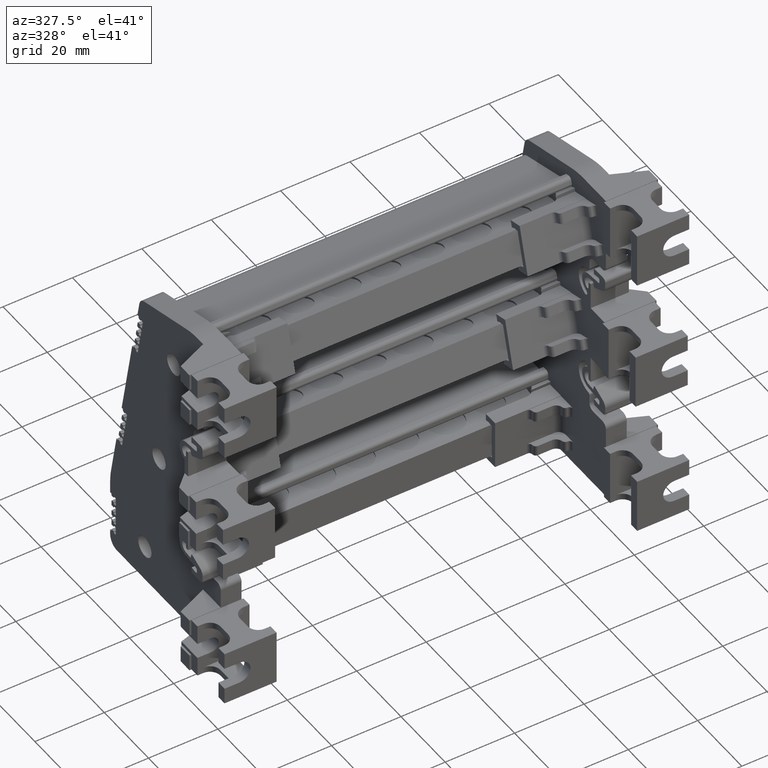
[diagram: clean part render]
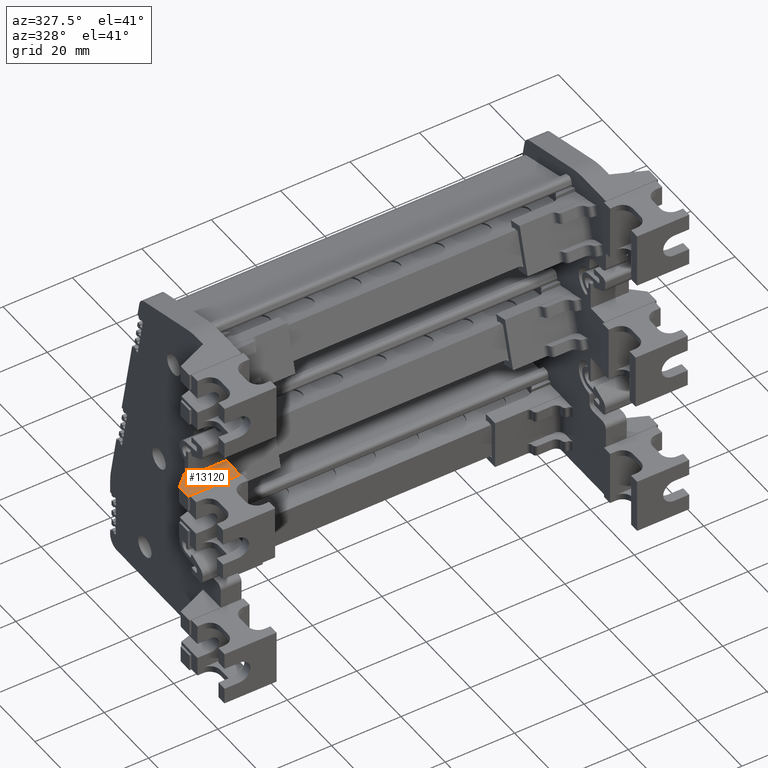
[diagram: same view with one face highlighted and labeled with its STEP entity id]
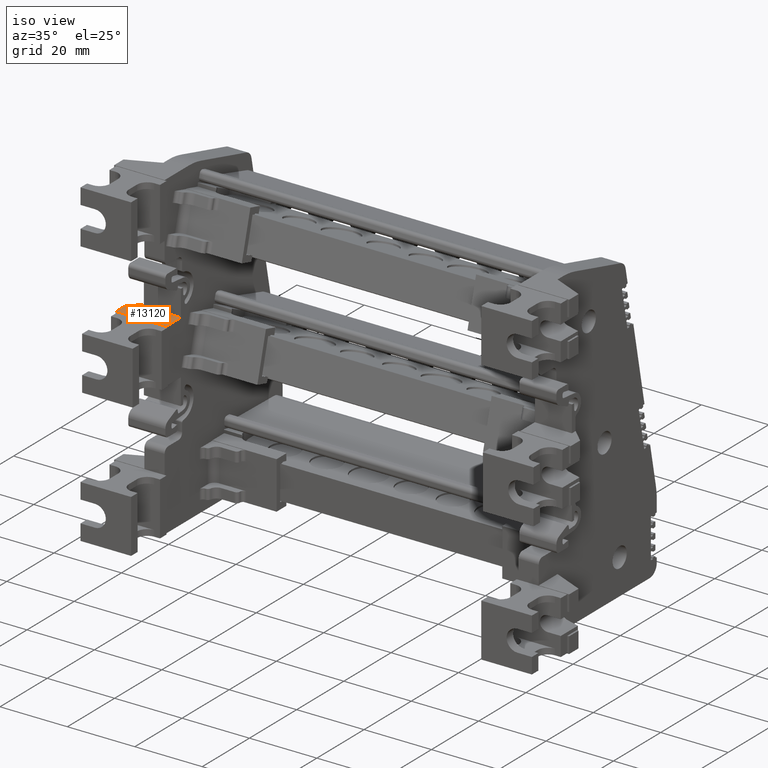
[diagram: same view with one face highlighted and labeled with its STEP entity id]
A machine part, auxiliary view. The second image highlights one B-rep face of the part: STEP entity #13120.
A second angle (iso view) of the same face is appended — the face is thin or edge-on in the first view.
In plain terms, the highlighted planar face has unit normal (-0, 0, 1).
Its self-contained STEP definition (entity closure, byte-faithful):
#4327 = VECTOR ( 'NONE', #17368, 1000.000000000000000 ) ;
#13120 = ADVANCED_FACE ( 'NONE', ( #96653 ), #96718, .T. ) ;
#15983 = AXIS2_PLACEMENT_3D ( 'NONE', #96721, #96632, #96686 ) ;
#17368 = DIRECTION ( 'NONE',  ( 1.000000000000000000, 0.0000000000000000000, 7.632116880597952300E-015 ) ) ;
#17402 = LINE ( 'NONE', #17408, #4327 ) ;
#17408 = CARTESIAN_POINT ( 'NONE',  ( -63.80194303252620400, 240.1545390998705900, 11.17073922711668400 ) ) ;
#31338 = VERTEX_POINT ( 'NONE', #64189 ) ;
#32450 = VERTEX_POINT ( 'NONE', #63067 ) ;
#33185 = VECTOR ( 'NONE', #54534, 1000.000000000000000 ) ;
#33701 = VECTOR ( 'NONE', #48618, 1000.000000000000100 ) ;
#34025 = VECTOR ( 'NONE', #49035, 1000.000000000000000 ) ;
#34026 = VECTOR ( 'NONE', #49032, 1000.000000000000000 ) ;
#34052 = VECTOR ( 'NONE', #38436, 1000.000000000000000 ) ;
#38412 = CARTESIAN_POINT ( 'NONE',  ( -66.80194303252542900, 246.3825403663297800, 11.17073922711671400 ) ) ;
#38434 = LINE ( 'NONE', #38412, #34052 ) ;
#38436 = DIRECTION ( 'NONE',  ( -1.000000000000000000, 9.378201609838889100E-016, 0.0000000000000000000 ) ) ;
#46136 = CARTESIAN_POINT ( 'NONE',  ( -75.80194303252487500, 244.1545390998700800, 11.17073922711660200 ) ) ;
#46180 = CARTESIAN_POINT ( 'NONE',  ( -71.80194303271018400, 247.9287522857934800, 11.17073922711662300 ) ) ;
#46445 = CARTESIAN_POINT ( 'NONE',  ( -60.80194303252650900, 246.3825403663297800, 11.17073922711671200 ) ) ;
#46446 = CARTESIAN_POINT ( 'NONE',  ( -71.80194303252528700, 246.3825403663297800, 11.17073922711666300 ) ) ;
#48532 = LINE ( 'NONE', #48581, #33701 ) ;
#48581 = CARTESIAN_POINT ( 'NONE',  ( -71.80194303326486200, 247.9287522855333100, 11.17073922711662300 ) ) ;
#48618 = DIRECTION ( 'NONE',  ( -0.7273366253865748400, -0.6862808706144075700, -5.677775636531651300E-015 ) ) ;
#49032 = DIRECTION ( 'NONE',  ( 5.315448268350289800E-044, 1.000000000000000000, -6.964579226849891800E-030 ) ) ;
#49035 = DIRECTION ( 'NONE',  ( -4.290203608980897600E-017, -1.000000000000000000, -1.745159627159392800E-031 ) ) ;
#49041 = CARTESIAN_POINT ( 'NONE',  ( -71.80194303252530100, 243.8335316597629100, 11.17073922711662300 ) ) ;
#49068 = LINE ( 'NONE', #49041, #34025 ) ;
#49069 = CARTESIAN_POINT ( 'NONE',  ( -60.80194303252648100, 240.1545390998705600, 11.17073922711670700 ) ) ;
#49072 = LINE ( 'NONE', #49069, #34026 ) ;
#50951 = EDGE_CURVE ( 'NONE', #84483, #32450, #54517, .T. ) ;
#51136 = EDGE_CURVE ( 'NONE', #84511, #84483, #48532, .T. ) ;
#51290 = EDGE_CURVE ( 'NONE', #31338, #84915, #49072, .T. ) ;
#51292 = EDGE_CURVE ( 'NONE', #84511, #84919, #49068, .T. ) ;
#51321 = EDGE_CURVE ( 'NONE', #84915, #84919, #38434, .T. ) ;
#54517 = LINE ( 'NONE', #54538, #33185 ) ;
#54534 = DIRECTION ( 'NONE',  ( -5.315448268350289800E-044, -1.000000000000000000, 6.964579226849891800E-030 ) ) ;
#54538 = CARTESIAN_POINT ( 'NONE',  ( -75.80194303252487500, 240.1545390998705600, 11.17073922711659200 ) ) ;
#55711 = EDGE_CURVE ( 'NONE', #32450, #31338, #17402, .T. ) ;
#63067 = CARTESIAN_POINT ( 'NONE',  ( -75.80194303252486100, 240.1545390998705900, 11.17073922711659000 ) ) ;
#64189 = CARTESIAN_POINT ( 'NONE',  ( -60.80194303252648100, 240.1545390998705600, 11.17073922711670900 ) ) ;
#81284 = ORIENTED_EDGE ( 'NONE', *, *, #51292, .F. ) ;
#81322 = ORIENTED_EDGE ( 'NONE', *, *, #51321, .T. ) ;
#81323 = ORIENTED_EDGE ( 'NONE', *, *, #51136, .T. ) ;
#81328 = ORIENTED_EDGE ( 'NONE', *, *, #51290, .T. ) ;
#81339 = ORIENTED_EDGE ( 'NONE', *, *, #55711, .T. ) ;
#81348 = ORIENTED_EDGE ( 'NONE', *, *, #50951, .T. ) ;
#84483 = VERTEX_POINT ( 'NONE', #46136 ) ;
#84511 = VERTEX_POINT ( 'NONE', #46180 ) ;
#84915 = VERTEX_POINT ( 'NONE', #46445 ) ;
#84919 = VERTEX_POINT ( 'NONE', #46446 ) ;
#91130 = EDGE_LOOP ( 'NONE', ( #81339, #81328, #81322, #81284, #81323, #81348 ) ) ;
#96632 = DIRECTION ( 'NONE',  ( -7.632116880597952300E-015, 6.964579226849891800E-030, 1.000000000000000000 ) ) ;
#96653 = FACE_OUTER_BOUND ( 'NONE', #91130, .T. ) ;
#96686 = DIRECTION ( 'NONE',  ( 1.000000000000000000, 0.0000000000000000000, 7.632116880597952300E-015 ) ) ;
#96718 = PLANE ( 'NONE',  #15983 ) ;
#96721 = CARTESIAN_POINT ( 'NONE',  ( -63.80194303252620400, 240.1545390998705600, 11.17073922711668400 ) ) ;